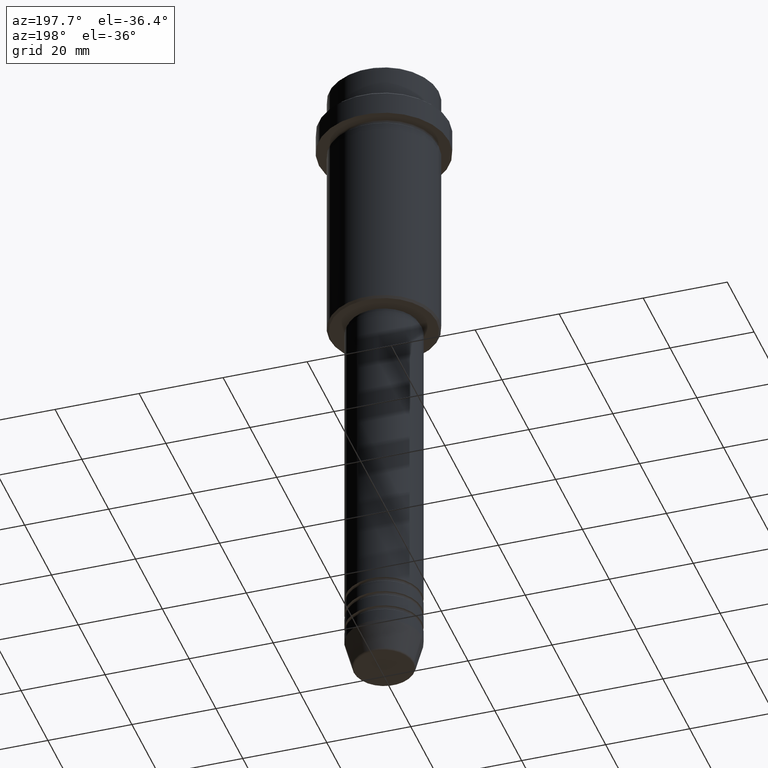
[diagram: clean part render]
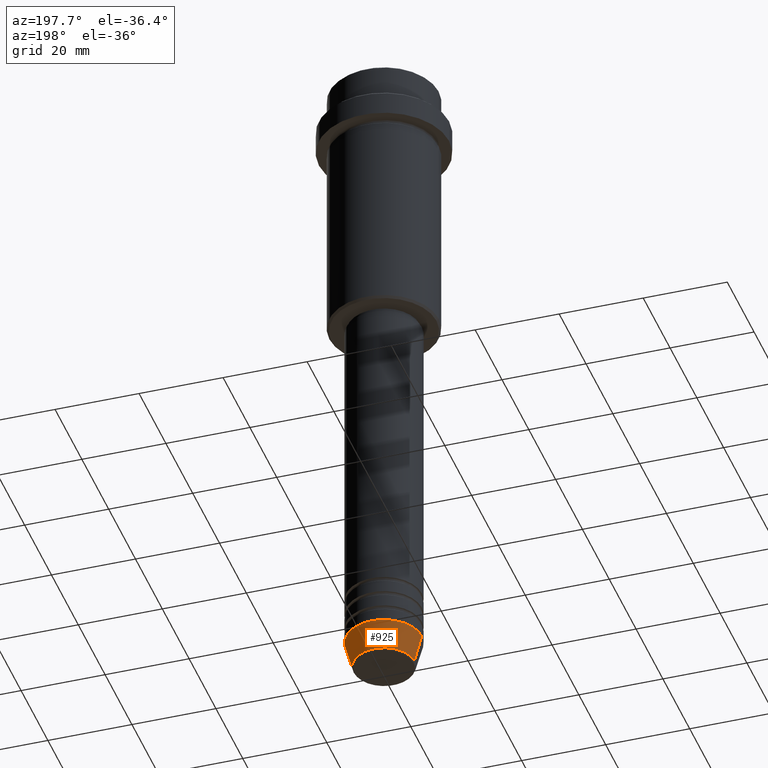
[diagram: same view with one face highlighted and labeled with its STEP entity id]
A machine part, auxiliary view. The second image highlights one B-rep face of the part: STEP entity #925.
In plain terms, the highlighted conical surface has half-angle 15 deg.
Its self-contained STEP definition (entity closure, byte-faithful):
#11 = EDGE_CURVE ( 'NONE', #401, #538, #1022, .T. ) ;
#136 = CARTESIAN_POINT ( 'NONE',  ( -7.223655072137189492, 9.934123627281765110E-16, -159.6294095225512706 ) ) ;
#224 = ORIENTED_EDGE ( 'NONE', *, *, #1127, .T. ) ;
#246 = AXIS2_PLACEMENT_3D ( 'NONE', #1202, #436, #324 ) ;
#252 = FACE_OUTER_BOUND ( 'NONE', #342, .T. ) ;
#261 = ORIENTED_EDGE ( 'NONE', *, *, #646, .F. ) ;
#271 = DIRECTION ( 'NONE',  ( 0.2588190451025213501, 0.000000000000000000, 0.9659258262890680902 ) ) ;
#296 = VECTOR ( 'NONE', #433, 1000.000000000000000 ) ;
#324 = DIRECTION ( 'NONE',  ( 1.000000000000000000, 0.000000000000000000, 0.000000000000000000 ) ) ;
#342 = EDGE_LOOP ( 'NONE', ( #750, #224, #261, #1410 ) ) ;
#359 = CARTESIAN_POINT ( 'NONE',  ( -9.000000000000000000, 1.102182119232617714E-15, -153.0000000000000000 ) ) ;
#371 = CARTESIAN_POINT ( 'NONE',  ( 7.223655072137188604, 0.000000000000000000, -159.6294095225512706 ) ) ;
#401 = VERTEX_POINT ( 'NONE', #371 ) ;
#410 = DIRECTION ( 'NONE',  ( -0.000000000000000000, -0.000000000000000000, 1.000000000000000000 ) ) ;
#415 = CARTESIAN_POINT ( 'NONE',  ( -9.000000000000000000, 1.102182119232617714E-15, -153.0000000000000000 ) ) ;
#433 = DIRECTION ( 'NONE',  ( -0.2588190451025213501, 3.169619151431772337E-17, 0.9659258262890680902 ) ) ;
#436 = DIRECTION ( 'NONE',  ( -0.000000000000000000, -0.000000000000000000, 1.000000000000000000 ) ) ;
#493 = CARTESIAN_POINT ( 'NONE',  ( 9.000000000000000000, 0.000000000000000000, -153.0000000000000000 ) ) ;
#501 = EDGE_CURVE ( 'NONE', #401, #915, #1415, .T. ) ;
#526 = DIRECTION ( 'NONE',  ( 1.000000000000000000, 0.000000000000000000, 0.000000000000000000 ) ) ;
#538 = VERTEX_POINT ( 'NONE', #1269 ) ;
#646 = EDGE_CURVE ( 'NONE', #538, #904, #930, .T. ) ;
#687 = CARTESIAN_POINT ( 'NONE',  ( 0.000000000000000000, 0.000000000000000000, -153.0000000000000000 ) ) ;
#711 = DIRECTION ( 'NONE',  ( 1.000000000000000000, 0.000000000000000000, 0.000000000000000000 ) ) ;
#750 = ORIENTED_EDGE ( 'NONE', *, *, #501, .T. ) ;
#766 = VECTOR ( 'NONE', #271, 1000.000000000000000 ) ;
#799 = CONICAL_SURFACE ( 'NONE', #937, 9.000000000000000000, 0.2617993877991500740 ) ;
#904 = VERTEX_POINT ( 'NONE', #359 ) ;
#915 = VERTEX_POINT ( 'NONE', #136 ) ;
#925 = ADVANCED_FACE ( 'NONE', ( #252 ), #799, .T. ) ;
#930 = CIRCLE ( 'NONE', #246, 9.000000000000000000 ) ;
#937 = AXIS2_PLACEMENT_3D ( 'NONE', #687, #1379, #711 ) ;
#1022 = LINE ( 'NONE', #493, #766 ) ;
#1095 = LINE ( 'NONE', #415, #296 ) ;
#1127 = EDGE_CURVE ( 'NONE', #915, #904, #1095, .T. ) ;
#1202 = CARTESIAN_POINT ( 'NONE',  ( 0.000000000000000000, 0.000000000000000000, -153.0000000000000000 ) ) ;
#1269 = CARTESIAN_POINT ( 'NONE',  ( 9.000000000000000000, 0.000000000000000000, -153.0000000000000000 ) ) ;
#1282 = CARTESIAN_POINT ( 'NONE',  ( 0.000000000000000000, 0.000000000000000000, -159.6294095225512706 ) ) ;
#1379 = DIRECTION ( 'NONE',  ( -0.000000000000000000, -0.000000000000000000, 1.000000000000000000 ) ) ;
#1387 = AXIS2_PLACEMENT_3D ( 'NONE', #1282, #410, #526 ) ;
#1410 = ORIENTED_EDGE ( 'NONE', *, *, #11, .F. ) ;
#1415 = CIRCLE ( 'NONE', #1387, 7.223655072137188604 ) ;